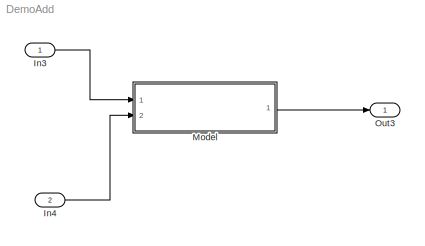
MODEL DemoAdd
KIND model
BLOCK [Inport] In3
  IconDisplay = Port number
  SID = 7
BLOCK [Inport] In4
  IconDisplay = Port number
  Port = 2
  SID = 9
BLOCK [ModelReference] Model
  CopyOfModelName = Add
  DefaultDataLogging = on
  ModelNameDialog = Add
  ModelReferenceVersion = 1.1
  Ports = [2, 1]
  SID = 10
BLOCK [Outport] Out3
  IconDisplay = Port number
  SID = 8
LINE In3:1 -> Model:1
LINE In4:1 -> Model:2
LINE Model:1 -> Out3:1
